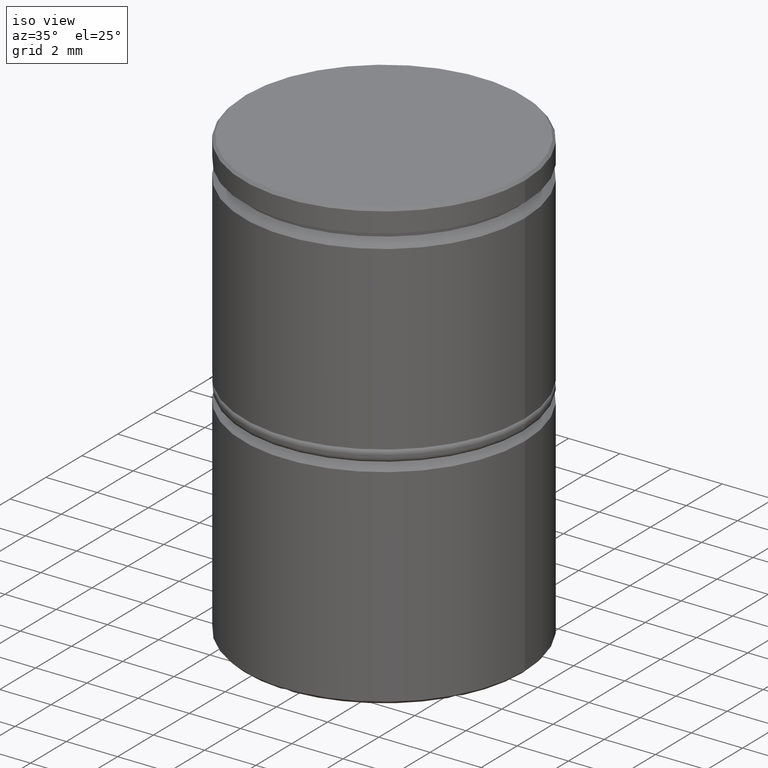
[diagram: clean part render]
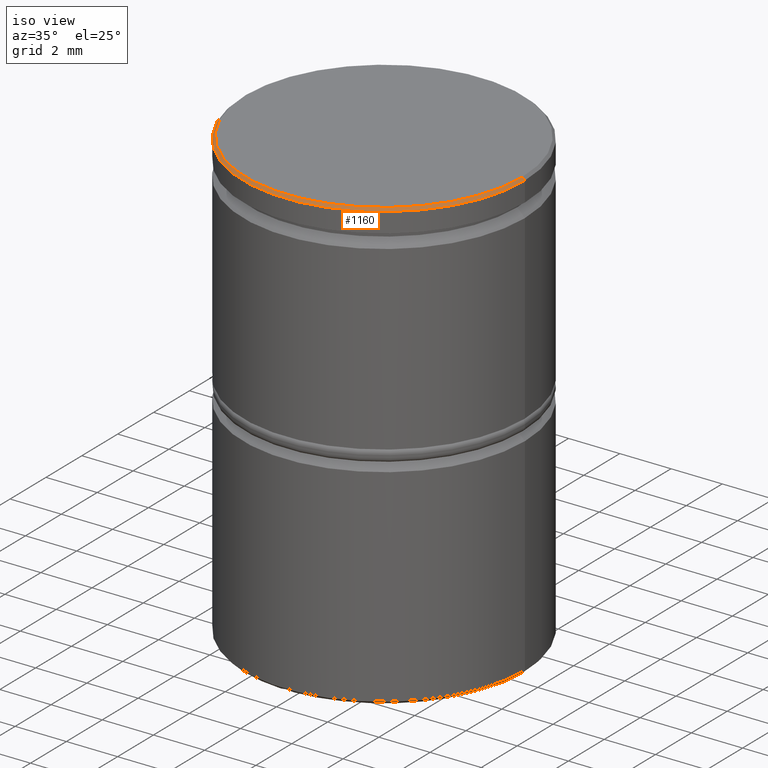
[diagram: same view with one face highlighted and labeled with its STEP entity id]
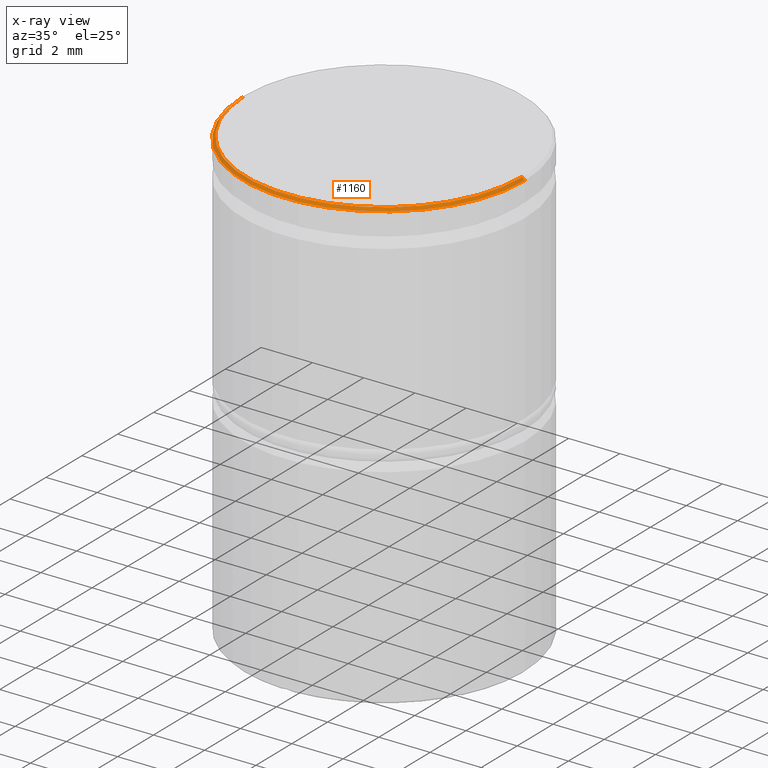
[diagram: x-ray of the same camera — body ghosted, the highlighted face saturated]
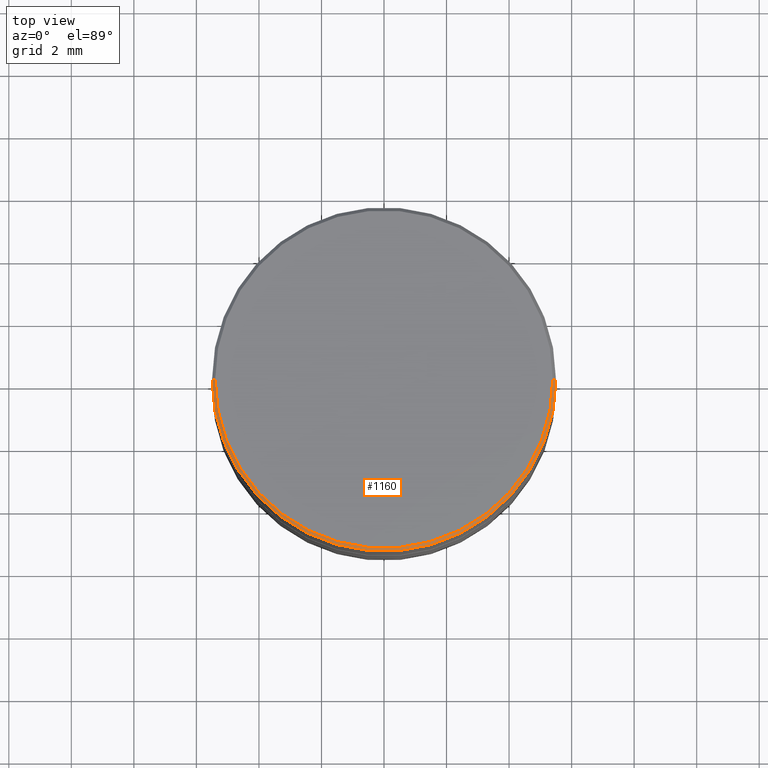
[diagram: same view with one face highlighted and labeled with its STEP entity id]
A machine part, iso view. The second image highlights one B-rep face of the part: STEP entity #1160.
The next image is the same camera in x-ray: the body ghosted, the highlighted face saturated — about 0% of this face is hidden behind the body in this view.
A second angle (top view) of the same face is appended — the face is thin or edge-on in the first view.
In plain terms, the highlighted conical surface has half-angle 45 deg.
Its self-contained STEP definition (entity closure, byte-faithful):
#15 = CARTESIAN_POINT ( 'NONE',  ( 0.000000000000000000, 0.000000000000000000, -0.09999999999999592548 ) ) ;
#36 = CIRCLE ( 'NONE', #446, 5.400000000000005684 ) ;
#55 = VERTEX_POINT ( 'NONE', #672 ) ;
#103 = CARTESIAN_POINT ( 'NONE',  ( -5.400000000000005684, 0.000000000000000000, 0.000000000000000000 ) ) ;
#149 = DIRECTION ( 'NONE',  ( 0.7071067811865414665, 8.659560562354857670E-17, -0.7071067811865536790 ) ) ;
#158 = CARTESIAN_POINT ( 'NONE',  ( -5.500000000000000000, 6.735557395310442023E-16, -0.09999999999999592548 ) ) ;
#193 = VERTEX_POINT ( 'NONE', #268 ) ;
#241 = DIRECTION ( 'NONE',  ( 1.000000000000000000, 0.000000000000000000, 0.000000000000000000 ) ) ;
#268 = CARTESIAN_POINT ( 'NONE',  ( 5.400000000000005684, 6.674325055353078196E-16, 0.000000000000000000 ) ) ;
#283 = EDGE_CURVE ( 'NONE', #55, #500, #526, .T. ) ;
#358 = DIRECTION ( 'NONE',  ( -0.000000000000000000, -0.000000000000000000, 1.000000000000000000 ) ) ;
#374 = DIRECTION ( 'NONE',  ( 0.000000000000000000, 0.000000000000000000, -1.000000000000000000 ) ) ;
#398 = ORIENTED_EDGE ( 'NONE', *, *, #413, .F. ) ;
#413 = EDGE_CURVE ( 'NONE', #193, #1233, #1108, .T. ) ;
#446 = AXIS2_PLACEMENT_3D ( 'NONE', #769, #358, #241 ) ;
#460 = VECTOR ( 'NONE', #868, 1000.000000000000000 ) ;
#464 = DIRECTION ( 'NONE',  ( 1.000000000000000000, 0.000000000000000000, 0.000000000000000000 ) ) ;
#471 = DIRECTION ( 'NONE',  ( 0.000000000000000000, 0.000000000000000000, -1.000000000000000000 ) ) ;
#500 = VERTEX_POINT ( 'NONE', #158 ) ;
#526 = LINE ( 'NONE', #103, #460 ) ;
#548 = AXIS2_PLACEMENT_3D ( 'NONE', #15, #471, #464 ) ;
#574 = CARTESIAN_POINT ( 'NONE',  ( 0.000000000000000000, 0.000000000000000000, 0.000000000000000000 ) ) ;
#583 = ORIENTED_EDGE ( 'NONE', *, *, #916, .F. ) ;
#672 = CARTESIAN_POINT ( 'NONE',  ( -5.400000000000005684, 0.000000000000000000, 0.000000000000000000 ) ) ;
#675 = FACE_OUTER_BOUND ( 'NONE', #687, .T. ) ;
#687 = EDGE_LOOP ( 'NONE', ( #398, #715, #799, #583 ) ) ;
#715 = ORIENTED_EDGE ( 'NONE', *, *, #1264, .F. ) ;
#769 = CARTESIAN_POINT ( 'NONE',  ( 0.000000000000000000, 0.000000000000000000, 0.000000000000000000 ) ) ;
#789 = DIRECTION ( 'NONE',  ( -1.000000000000000000, 0.000000000000000000, 0.000000000000000000 ) ) ;
#799 = ORIENTED_EDGE ( 'NONE', *, *, #283, .T. ) ;
#835 = AXIS2_PLACEMENT_3D ( 'NONE', #574, #374, #789 ) ;
#868 = DIRECTION ( 'NONE',  ( -0.7071067811865414665, 0.000000000000000000, -0.7071067811865536790 ) ) ;
#916 = EDGE_CURVE ( 'NONE', #1233, #500, #1366, .T. ) ;
#1096 = CARTESIAN_POINT ( 'NONE',  ( 5.500000000000000000, 0.000000000000000000, -0.09999999999999592548 ) ) ;
#1100 = VECTOR ( 'NONE', #149, 1000.000000000000000 ) ;
#1108 = LINE ( 'NONE', #1217, #1100 ) ;
#1160 = ADVANCED_FACE ( 'NONE', ( #675 ), #1327, .T. ) ;
#1217 = CARTESIAN_POINT ( 'NONE',  ( 5.400000000000005684, 6.613092715395714369E-16, 0.000000000000000000 ) ) ;
#1233 = VERTEX_POINT ( 'NONE', #1096 ) ;
#1264 = EDGE_CURVE ( 'NONE', #55, #193, #36, .T. ) ;
#1327 = CONICAL_SURFACE ( 'NONE', #835, 5.400000000000005684, 0.7853981633974396193 ) ;
#1366 = CIRCLE ( 'NONE', #548, 5.500000000000000000 ) ;